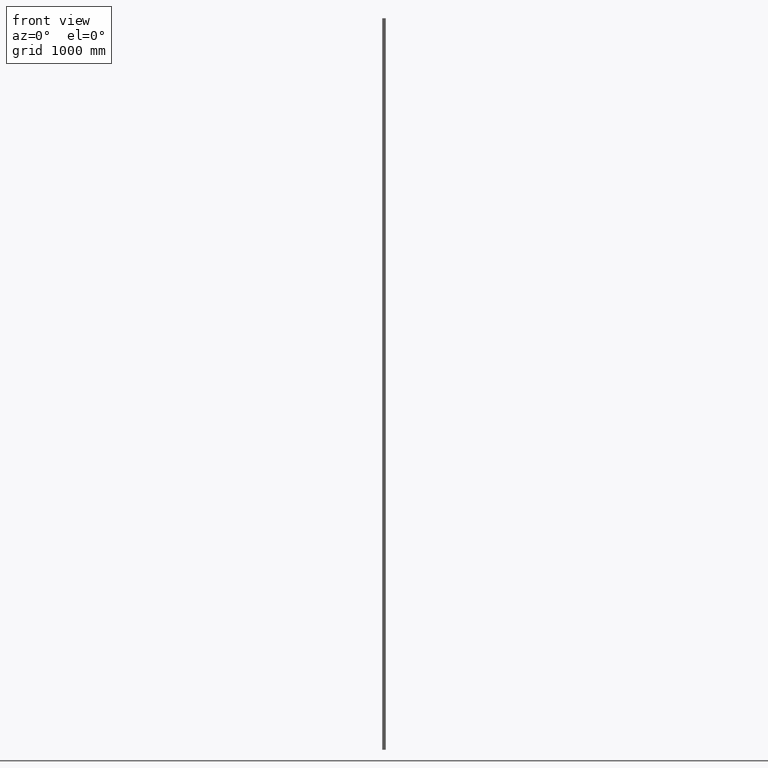
[diagram: clean part render]
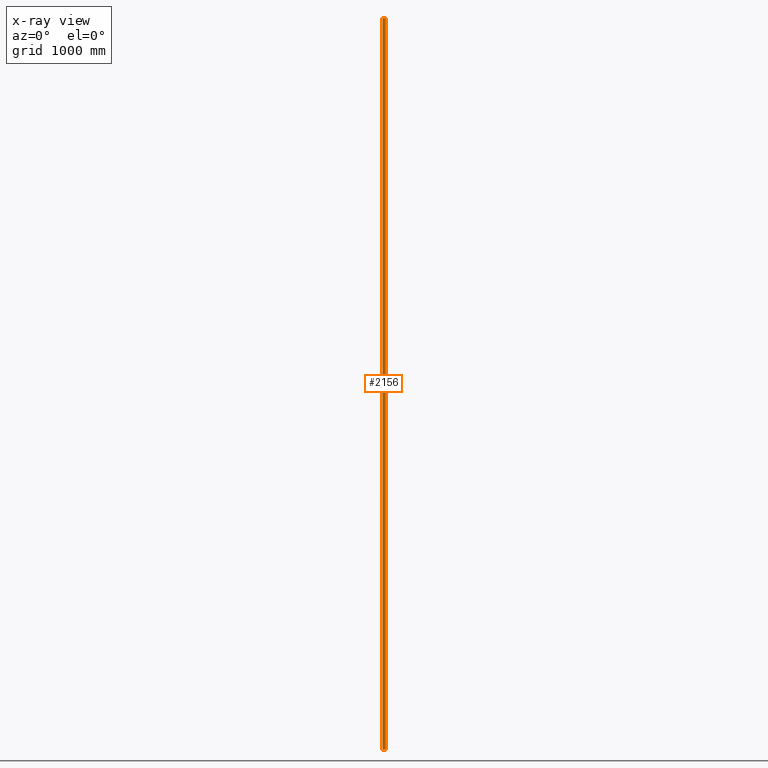
[diagram: x-ray — body ghosted, one internal face saturated and labeled with its STEP entity id]
A machine part, front view, then the same camera in x-ray: the body is ghosted and one INTERNAL B-rep face — a face not visible from any outside direction — is saturated and labeled: STEP entity #2156.
In plain terms, the highlighted planar face has unit normal (0, 1, 0).
Its self-contained STEP definition (entity closure, byte-faithful):
#959 = CARTESIAN_POINT ( 'NONE',  ( -12.00000000000000200, 18.00000000000000400, 3000.000000000000000 ) ) ;
#1242 = CARTESIAN_POINT ( 'NONE',  ( -12.00000000000000200, 18.00000000000000400, -3000.000000000000000 ) ) ;
#1356 = LINE ( 'NONE', #5317, #8958 ) ;
#1385 = EDGE_CURVE ( 'NONE', #12830, #12359, #7375, .T. ) ;
#1844 = CARTESIAN_POINT ( 'NONE',  ( 11.99999999999999600, 18.00000000000000400, -3000.000000000000000 ) ) ;
#2102 = ORIENTED_EDGE ( 'NONE', *, *, #4133, .F. ) ;
#2156 = ADVANCED_FACE ( 'NONE', ( #12349 ), #9437, .F. ) ;
#2447 = ORIENTED_EDGE ( 'NONE', *, *, #14074, .F. ) ;
#2600 = CARTESIAN_POINT ( 'NONE',  ( -12.00000000000000200, 18.00000000000000400, -3000.000000000000000 ) ) ;
#3583 = CARTESIAN_POINT ( 'NONE',  ( -12.00000000000000200, 18.00000000000000400, 3000.000000000000000 ) ) ;
#3712 = CARTESIAN_POINT ( 'NONE',  ( 11.99999999999999600, 18.00000000000000400, 3000.000000000000000 ) ) ;
#4133 = EDGE_CURVE ( 'NONE', #15182, #13901, #11683, .T. ) ;
#4216 = AXIS2_PLACEMENT_3D ( 'NONE', #3583, #9529, #4686 ) ;
#4686 = DIRECTION ( 'NONE',  ( 0.0000000000000000000, -0.0000000000000000000, 1.000000000000000000 ) ) ;
#5317 = CARTESIAN_POINT ( 'NONE',  ( -12.00000000000000200, 18.00000000000000400, 3000.000000000000000 ) ) ;
#5459 = EDGE_LOOP ( 'NONE', ( #14517, #2447, #2102, #15264 ) ) ;
#5623 = LINE ( 'NONE', #3712, #12643 ) ;
#5717 = VECTOR ( 'NONE', #7348, 1000.000000000000000 ) ;
#5726 = DIRECTION ( 'NONE',  ( 1.000000000000000000, 0.0000000000000000000, 0.0000000000000000000 ) ) ;
#6051 = DIRECTION ( 'NONE',  ( -0.0000000000000000000, -0.0000000000000000000, -1.000000000000000000 ) ) ;
#7348 = DIRECTION ( 'NONE',  ( 1.000000000000000000, 0.0000000000000000000, 0.0000000000000000000 ) ) ;
#7375 = LINE ( 'NONE', #1242, #5717 ) ;
#8958 = VECTOR ( 'NONE', #13493, 1000.000000000000000 ) ;
#9054 = CARTESIAN_POINT ( 'NONE',  ( -12.00000000000000200, 18.00000000000000400, 3000.000000000000000 ) ) ;
#9437 = PLANE ( 'NONE',  #4216 ) ;
#9529 = DIRECTION ( 'NONE',  ( 0.0000000000000000000, 1.000000000000000000, 0.0000000000000000000 ) ) ;
#11297 = VECTOR ( 'NONE', #5726, 1000.000000000000000 ) ;
#11683 = LINE ( 'NONE', #959, #11297 ) ;
#12349 = FACE_OUTER_BOUND ( 'NONE', #5459, .T. ) ;
#12351 = EDGE_CURVE ( 'NONE', #15182, #12830, #1356, .T. ) ;
#12359 = VERTEX_POINT ( 'NONE', #1844 ) ;
#12643 = VECTOR ( 'NONE', #6051, 1000.000000000000000 ) ;
#12830 = VERTEX_POINT ( 'NONE', #2600 ) ;
#13456 = CARTESIAN_POINT ( 'NONE',  ( 11.99999999999999600, 18.00000000000000400, 3000.000000000000000 ) ) ;
#13493 = DIRECTION ( 'NONE',  ( -0.0000000000000000000, -0.0000000000000000000, -1.000000000000000000 ) ) ;
#13901 = VERTEX_POINT ( 'NONE', #13456 ) ;
#14074 = EDGE_CURVE ( 'NONE', #13901, #12359, #5623, .T. ) ;
#14517 = ORIENTED_EDGE ( 'NONE', *, *, #1385, .T. ) ;
#15182 = VERTEX_POINT ( 'NONE', #9054 ) ;
#15264 = ORIENTED_EDGE ( 'NONE', *, *, #12351, .T. ) ;